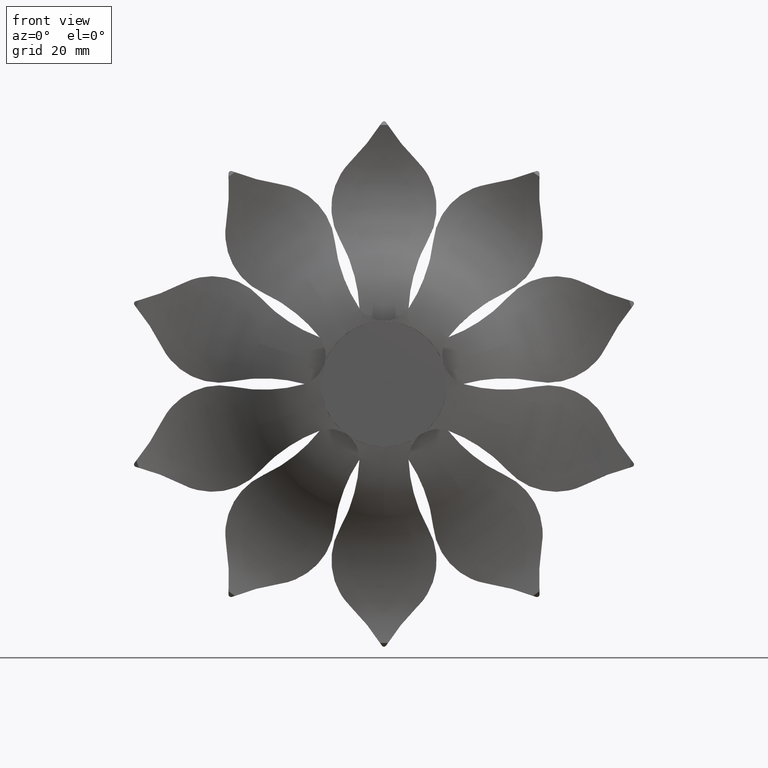
[diagram: clean part render]
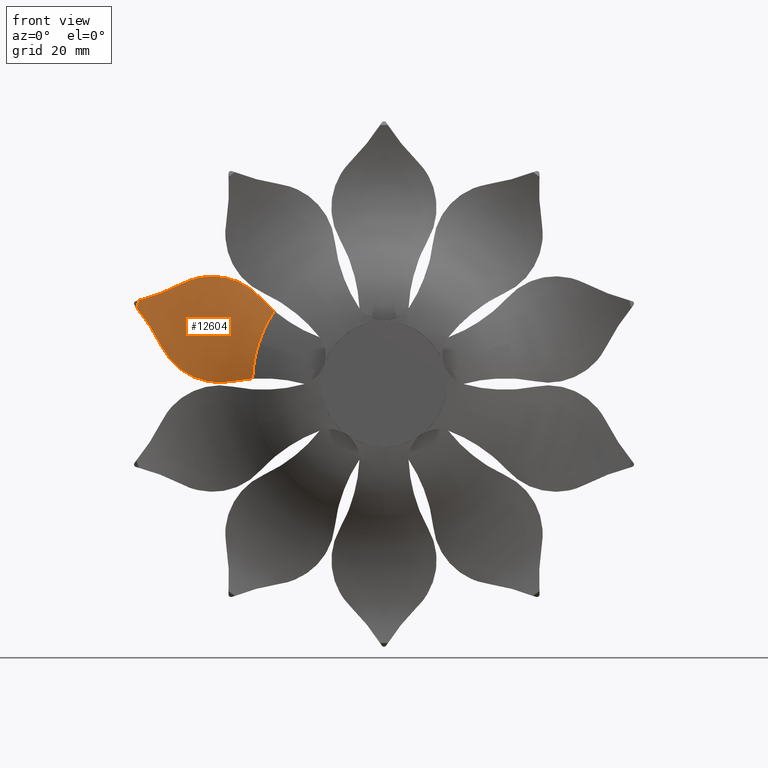
[diagram: same view with one face highlighted and labeled with its STEP entity id]
A machine part, front view. The second image highlights one B-rep face of the part: STEP entity #12604.
In plain terms, the highlighted toroidal blend (fillet) surface has major radius 43.2838 mm and minor (blend) radius 27.6 mm.
Its self-contained STEP definition (entity closure, byte-faithful):
#63 = ORIENTED_EDGE ( 'NONE', *, *, #2050, .F. ) ;
#524 = ORIENTED_EDGE ( 'NONE', *, *, #846, .T. ) ;
#565 = CIRCLE ( 'NONE', #9128, 26.29112535509701942 ) ;
#722 = CARTESIAN_POINT ( 'NONE',  ( -20.75194429518190020, 10.54755544722352489, 39.91182227091049128 ) ) ;
#846 = EDGE_CURVE ( 'NONE', #9246, #7565, #14356, .T. ) ;
#901 = EDGE_CURVE ( 'NONE', #11634, #11380, #12886, .T. ) ;
#1156 = CARTESIAN_POINT ( 'NONE',  ( -12.26991636015614873, 9.856958449283801826, 34.78352821412711648 ) ) ;
#1217 = CARTESIAN_POINT ( 'NONE',  ( -15.36519430547474663, 10.49417826021142197, 37.78649313735161286 ) ) ;
#1371 = VERTEX_POINT ( 'NONE', #15833 ) ;
#2050 = EDGE_CURVE ( 'NONE', #5198, #11380, #7289, .T. ) ;
#2121 = CARTESIAN_POINT ( 'NONE',  ( -31.68858752210804042, 10.60046889143013082, 29.16786523766130657 ) ) ;
#2139 = CARTESIAN_POINT ( 'NONE',  ( -9.836678862074462515, 7.283183596901887213, 28.51668430190481374 ) ) ;
#2463 = EDGE_CURVE ( 'NONE', #7565, #1371, #565, .T. ) ;
#2497 = CARTESIAN_POINT ( 'NONE',  ( -11.50040148391568096, 9.495765019087334835, 33.61027706735125520 ) ) ;
#2524 = EDGE_LOOP ( 'NONE', ( #6614, #15226, #63, #12087, #7402, #3660, #524, #2997, #6456 ) ) ;
#2921 = CARTESIAN_POINT ( 'NONE',  ( -24.08127749186827415, 7.283183596901950274, 18.16737760299285398 ) ) ;
#2997 = ORIENTED_EDGE ( 'NONE', *, *, #2463, .T. ) ;
#3606 = CARTESIAN_POINT ( 'NONE',  ( -31.62130904781177421, 10.59102595335922992, 28.44263695467939357 ) ) ;
#3660 = ORIENTED_EDGE ( 'NONE', *, *, #8208, .T. ) ;
#3663 = CARTESIAN_POINT ( 'NONE',  ( -30.22466722431976649, 10.19649640782911781, 23.95999447590825326 ) ) ;
#3995 = CARTESIAN_POINT ( 'NONE',  ( -14.23207970164894931, 10.34679142028313414, 36.88959224650926672 ) ) ;
#4238 = B_SPLINE_CURVE_WITH_KNOTS ( 'NONE', 3,
 ( #5189, #15588, #14226, #12664 ),
 .UNSPECIFIED., .F., .F.,
 ( 4, 4 ),
 ( 6.896080884636084935E-06, 0.009469673696666675369 ),
 .UNSPECIFIED. ) ;
#4414 = CARTESIAN_POINT ( 'NONE',  ( -29.81448569398125059, 9.265330635357781119, 42.31398885819376687 ) ) ;
#4889 = CARTESIAN_POINT ( 'NONE',  ( -30.38942171894194999, 10.25165066197916630, 24.28472857488543468 ) ) ;
#4953 = CARTESIAN_POINT ( 'NONE',  ( -29.69410609069712592, 10.01013114152859274, 23.01441192329667729 ) ) ;
#5009 = FACE_OUTER_BOUND ( 'NONE', #2524, .T. ) ;
#5015 = CARTESIAN_POINT ( 'NONE',  ( -24.67326361786968292, 7.625857686899951915, 18.43593798971340902 ) ) ;
#5134 = CARTESIAN_POINT ( 'NONE',  ( -28.63605288973101892, 9.588209591248332941, 21.60326117386648903 ) ) ;
#5189 = CARTESIAN_POINT ( 'NONE',  ( -31.02981207603628278, 9.265330635357781119, 41.43100255622390904 ) ) ;
#5198 = VERTEX_POINT ( 'NONE', #6701 ) ;
#5459 = CARTESIAN_POINT ( 'NONE',  ( -20.02487288170476276, 10.57447409606210087, 39.79840464408768952 ) ) ;
#5586 = CARTESIAN_POINT ( 'NONE',  ( -10.37582843311630398, 8.531601322708299406, 31.08985335821977358 ) ) ;
#6088 = DIRECTION ( 'NONE',  ( 0.5877852522924685852, 0.000000000000000000, -0.8090169943749507819 ) ) ;
#6111 = CARTESIAN_POINT ( 'NONE',  ( -31.54569519442965131, 10.54755544722396188, 32.06970320591099011 ) ) ;
#6285 = B_SPLINE_CURVE_WITH_KNOTS ( 'NONE', 3,
 ( #7162, #8673, #10065, #5586, #11440, #15993, #2497, #1156, #15862, #7037, #16061, #3995, #14440, #1217, #17480, #8424, #11625, #7101, #5459, #17414 ),
 .UNSPECIFIED., .F., .F.,
 ( 4, 2, 2, 2, 2, 2, 2, 2, 2, 4 ),
 ( 2.567590521654505550E-07, 0.002178589757468173127, 0.004356922755884180820, 0.006535255754300187646, 0.008713588752716196206, 0.009802755251924200053, 0.01089192175113220737, 0.01307025474954822894, 0.01524858774796425225, 0.01742692074638027555 ),
 .UNSPECIFIED. ) ;
#6393 = EDGE_CURVE ( 'NONE', #11036, #7125, #18693, .T. ) ;
#6446 = CARTESIAN_POINT ( 'NONE',  ( -26.90576490748927441, 8.802778754078167012, 19.89099008454681439 ) ) ;
#6456 = ORIENTED_EDGE ( 'NONE', *, *, #13436, .T. ) ;
#6504 = CARTESIAN_POINT ( 'NONE',  ( 0.000000000000000000, 4.748799999999993915, 0.000000000000000000 ) ) ;
#6560 = CARTESIAN_POINT ( 'NONE',  ( -20.61767661128903129, 4.748799999999994803, 16.31363489813752921 ) ) ;
#6580 = CARTESIAN_POINT ( 'NONE',  ( -9.441442262414405207, 5.709479922466385915, 25.85086296350137403 ) ) ;
#6614 = ORIENTED_EDGE ( 'NONE', *, *, #9482, .T. ) ;
#6636 = CARTESIAN_POINT ( 'NONE',  ( -26.36891018296672229, 8.535185475725679538, 19.48030538174926107 ) ) ;
#6701 = CARTESIAN_POINT ( 'NONE',  ( -31.02981207603628278, 9.265330635357781119, 41.43100255622390904 ) ) ;
#7021 = DIRECTION ( 'NONE',  ( 0.5877852522924685852, 0.000000000000000000, -0.8090169943749507819 ) ) ;
#7037 = CARTESIAN_POINT ( 'NONE',  ( -13.44130371979989746, 10.19512747062286806, 36.14320739219731138 ) ) ;
#7101 = CARTESIAN_POINT ( 'NONE',  ( -19.31776247438333272, 10.59307741154659510, 39.62532809236698483 ) ) ;
#7125 = VERTEX_POINT ( 'NONE', #2921 ) ;
#7162 = CARTESIAN_POINT ( 'NONE',  ( -9.836678862074462515, 7.283183596901887213, 28.51668430190481374 ) ) ;
#7289 = CIRCLE ( 'NONE', #17129, 51.76270095626732370 ) ;
#7402 = ORIENTED_EDGE ( 'NONE', *, *, #6393, .T. ) ;
#7565 = VERTEX_POINT ( 'NONE', #17786 ) ;
#7751 = CARTESIAN_POINT ( 'NONE',  ( -31.54569519442965131, 10.54755544722396188, 32.06970320591099011 ) ) ;
#7962 = DIRECTION ( 'NONE',  ( 0.000000000000000000, 1.000000000000000000, 0.000000000000000000 ) ) ;
#7967 = CARTESIAN_POINT ( 'NONE',  ( -24.08127749186827415, 7.283183596901950274, 18.16737760299285398 ) ) ;
#8060 = CARTESIAN_POINT ( 'NONE',  ( -20.61767661128903129, 4.748799999999994803, 16.31363489813752921 ) ) ;
#8087 = DIRECTION ( 'NONE',  ( 0.5877852522924685852, 0.000000000000000000, -0.8090169943749506709 ) ) ;
#8149 = CARTESIAN_POINT ( 'NONE',  ( 0.000000000000000000, -17.00000000000000355, -0.000000000000000000 ) ) ;
#8208 = EDGE_CURVE ( 'NONE', #7125, #9246, #16728, .T. ) ;
#8424 = CARTESIAN_POINT ( 'NONE',  ( -17.27285675165307666, 10.59598006626009337, 38.87737136417990769 ) ) ;
#8658 = DIRECTION ( 'NONE',  ( 0.000000000000000000, 1.000000000000000000, 0.000000000000000000 ) ) ;
#8673 = CARTESIAN_POINT ( 'NONE',  ( -9.909208605302239903, 7.626081830463963485, 29.16310883883929606 ) ) ;
#8741 = TOROIDAL_SURFACE ( 'NONE', #9831, 43.28376195334156762, 27.59999999999999787 ) ;
#9128 = AXIS2_PLACEMENT_3D ( 'NONE', #13327, #14830, #10153 ) ;
#9246 = VERTEX_POINT ( 'NONE', #6560 ) ;
#9247 = DIRECTION ( 'NONE',  ( 0.000000000000000000, 1.000000000000000000, 0.000000000000000000 ) ) ;
#9475 = CARTESIAN_POINT ( 'NONE',  ( -31.66236657892505235, 10.57444195676565180, 31.34403666535213873 ) ) ;
#9482 = EDGE_CURVE ( 'NONE', #13651, #11634, #6285, .T. ) ;
#9831 = AXIS2_PLACEMENT_3D ( 'NONE', #8149, #8658, #7021 ) ;
#10065 = CARTESIAN_POINT ( 'NONE',  ( -10.03031345662052765, 7.944689331777957442, 29.80721010146788075 ) ) ;
#10153 = DIRECTION ( 'NONE',  ( 0.5877852522924685852, 0.000000000000000000, -0.8090169943749506709 ) ) ;
#10948 = CARTESIAN_POINT ( 'NONE',  ( -21.66806556279494345, 5.709479922466399238, 16.96770116187376942 ) ) ;
#10976 = CARTESIAN_POINT ( 'NONE',  ( -31.70688888531377003, 10.60110675480177989, 29.53050949640898537 ) ) ;
#11036 = VERTEX_POINT ( 'NONE', #7751 ) ;
#11053 = CARTESIAN_POINT ( 'NONE',  ( -9.682127442337199241, 6.552512199707050122, 27.13923795382480719 ) ) ;
#11380 = VERTEX_POINT ( 'NONE', #4414 ) ;
#11440 = CARTESIAN_POINT ( 'NONE',  ( -10.60016202751815406, 8.799946153836740947, 31.72839806853812306 ) ) ;
#11625 = CARTESIAN_POINT ( 'NONE',  ( -17.94175430674261307, 10.60378634167893885, 39.16481111329363785 ) ) ;
#11634 = VERTEX_POINT ( 'NONE', #722 ) ;
#11885 = CARTESIAN_POINT ( 'NONE',  ( -9.836678862074462515, 7.283183596901887213, 28.51668430190481374 ) ) ;
#12087 = ORIENTED_EDGE ( 'NONE', *, *, #15789, .T. ) ;
#12604 = ADVANCED_FACE ( 'NONE', ( #5009 ), #8741, .F. ) ;
#12610 = CARTESIAN_POINT ( 'NONE',  ( -31.19040003720958509, 10.49453994354547959, 26.29484698169785162 ) ) ;
#12664 = CARTESIAN_POINT ( 'NONE',  ( -31.54569519442965131, 10.54755544722396188, 32.06970320591099011 ) ) ;
#12886 = B_SPLINE_CURVE_WITH_KNOTS ( 'NONE', 3,
 ( #17837, #13420, #13816, #18310 ),
 .UNSPECIFIED., .F., .F.,
 ( 4, 4 ),
 ( 2.794541563454939583E-07, 0.009463057069938321172 ),
 .UNSPECIFIED. ) ;
#13327 = CARTESIAN_POINT ( 'NONE',  ( 0.000000000000000000, 4.748799999999993915, 0.000000000000000000 ) ) ;
#13420 = CARTESIAN_POINT ( 'NONE',  ( -23.89895363060904288, 10.43104249179955190, 40.40273186217937962 ) ) ;
#13436 = EDGE_CURVE ( 'NONE', #1371, #13651, #18193, .T. ) ;
#13493 = CARTESIAN_POINT ( 'NONE',  ( 0.000000000000000000, 9.265330635357782896, 0.000000000000000000 ) ) ;
#13651 = VERTEX_POINT ( 'NONE', #11885 ) ;
#13816 = CARTESIAN_POINT ( 'NONE',  ( -26.92882074538777815, 10.09153778271862301, 41.21637445037703884 ) ) ;
#13907 = CARTESIAN_POINT ( 'NONE',  ( -31.71633840909499824, 10.59304910144278900, 30.61854450988496623 ) ) ;
#13971 = CARTESIAN_POINT ( 'NONE',  ( -28.40606055295801369, 9.490394481679167882, 21.33896901447224081 ) ) ;
#14106 = CARTESIAN_POINT ( 'NONE',  ( -29.29532005021304286, 9.859251219546500522, 22.42609561516514205 ) ) ;
#14226 = CARTESIAN_POINT ( 'NONE',  ( -31.04009859401408633, 10.43104249179955367, 35.21438634761435083 ) ) ;
#14356 = CIRCLE ( 'NONE', #18992, 26.29112535509701942 ) ;
#14440 = CARTESIAN_POINT ( 'NONE',  ( -14.50817486950621493, 10.38816102395477614, 37.12252540523923017 ) ) ;
#14830 = DIRECTION ( 'NONE',  ( 0.000000000000000000, 1.000000000000000000, 0.000000000000000000 ) ) ;
#15226 = ORIENTED_EDGE ( 'NONE', *, *, #901, .T. ) ;
#15402 = CARTESIAN_POINT ( 'NONE',  ( -30.82493242141148215, 10.38893211602070110, 25.27625150428269762 ) ) ;
#15470 = CARTESIAN_POINT ( 'NONE',  ( -27.92610274902925838, 9.278848504869243285, 20.83027826769955482 ) ) ;
#15483 = CARTESIAN_POINT ( 'NONE',  ( -9.143976316918257297, 4.748799999999996579, 24.64976611558542530 ) ) ;
#15501 = CARTESIAN_POINT ( 'NONE',  ( -22.81900718188342125, 6.552512199707068774, 17.59473613775263345 ) ) ;
#15531 = CARTESIAN_POINT ( 'NONE',  ( -25.25400209629853521, 7.947540918185952208, 18.75327225651048479 ) ) ;
#15588 = CARTESIAN_POINT ( 'NONE',  ( -30.87763825029026421, 10.09153778271863366, 38.34739059773338710 ) ) ;
#15591 = CARTESIAN_POINT ( 'NONE',  ( -31.37835597617524286, 10.54095887614223059, 26.99531616006489543 ) ) ;
#15789 = EDGE_CURVE ( 'NONE', #5198, #11036, #4238, .T. ) ;
#15833 = CARTESIAN_POINT ( 'NONE',  ( -9.143976316918257297, 4.748799999999996579, 24.64976611558542530 ) ) ;
#15862 = CARTESIAN_POINT ( 'NONE',  ( -12.70551011309559719, 10.00813549346049669, 35.34480272365041031 ) ) ;
#15993 = CARTESIAN_POINT ( 'NONE',  ( -11.16583976615626206, 9.285151388182578458, 32.99668697843524967 ) ) ;
#16061 = CARTESIAN_POINT ( 'NONE',  ( -13.69920119907998846, 10.25042130295759790, 36.40055155082243488 ) ) ;
#16728 = B_SPLINE_CURVE_WITH_KNOTS ( 'NONE', 3,
 ( #16938, #15501, #10948, #8060 ),
 .UNSPECIFIED., .F., .F.,
 ( 4, 4 ),
 ( 2.585991287416444325E-07, 0.004675297988477021723 ),
 .UNSPECIFIED. ) ;
#16899 = CARTESIAN_POINT ( 'NONE',  ( -30.68911390344843326, 10.34771275175312333, 24.94209823670928117 ) ) ;
#16938 = CARTESIAN_POINT ( 'NONE',  ( -24.08127749186827415, 7.283183596901950274, 18.16737760299285398 ) ) ;
#17088 = CARTESIAN_POINT ( 'NONE',  ( -27.67504818813930711, 9.164582695502772935, 20.58501206215584389 ) ) ;
#17129 = AXIS2_PLACEMENT_3D ( 'NONE', #13493, #9247, #6088 ) ;
#17414 = CARTESIAN_POINT ( 'NONE',  ( -20.75194429518190020, 10.54755544722352489, 39.91182227091049128 ) ) ;
#17480 = CARTESIAN_POINT ( 'NONE',  ( -15.97490274900208895, 10.54082407916816067, 38.18307977057988012 ) ) ;
#17786 = CARTESIAN_POINT ( 'NONE',  ( -15.45353574989862189, 4.748799999999995691, 21.26996721351564901 ) ) ;
#17837 = CARTESIAN_POINT ( 'NONE',  ( -20.75194429518190020, 10.54755544722352489, 39.91182227091049128 ) ) ;
#18193 = B_SPLINE_CURVE_WITH_KNOTS ( 'NONE', 3,
 ( #15483, #6580, #11053, #2139 ),
 .UNSPECIFIED., .F., .F.,
 ( 4, 4 ),
 ( 3.244229655342630650E-07, 0.004675363812313768422 ),
 .UNSPECIFIED. ) ;
#18310 = CARTESIAN_POINT ( 'NONE',  ( -29.81448569398125059, 9.265330635357781119, 42.31398885819376687 ) ) ;
#18468 = CARTESIAN_POINT ( 'NONE',  ( -31.57213088555712588, 10.58218063700111067, 28.07895443422631132 ) ) ;
#18693 = B_SPLINE_CURVE_WITH_KNOTS ( 'NONE', 3,
 ( #6111, #9475, #13907, #10976, #2121, #3606, #18468, #15591, #12610, #15402, #16899, #4889, #3663, #4953, #14106, #5134, #13971, #15470, #17088, #6446, #6636, #15531, #5015, #7967 ),
 .UNSPECIFIED., .F., .F.,
 ( 4, 2, 2, 2, 2, 2, 2, 2, 2, 2, 2, 4 ),
 ( 2.784986062175979844E-07, 0.002176460101350010702, 0.003264550902721906952, 0.004352641704093803202, 0.006528823306837605242, 0.007616914108209506262, 0.008705004909581409017, 0.01088118651232521279, 0.01196927731369711381, 0.01305736811506901830, 0.01523354971781282728, 0.01740973132055663800 ),
 .UNSPECIFIED. ) ;
#18992 = AXIS2_PLACEMENT_3D ( 'NONE', #6504, #7962, #8087 ) ;